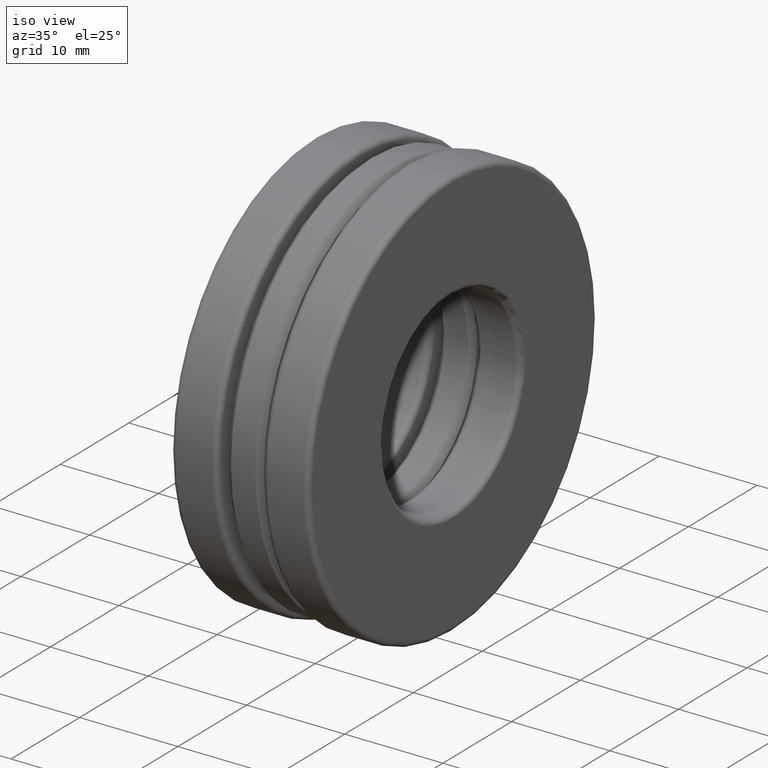
[diagram: clean part render]
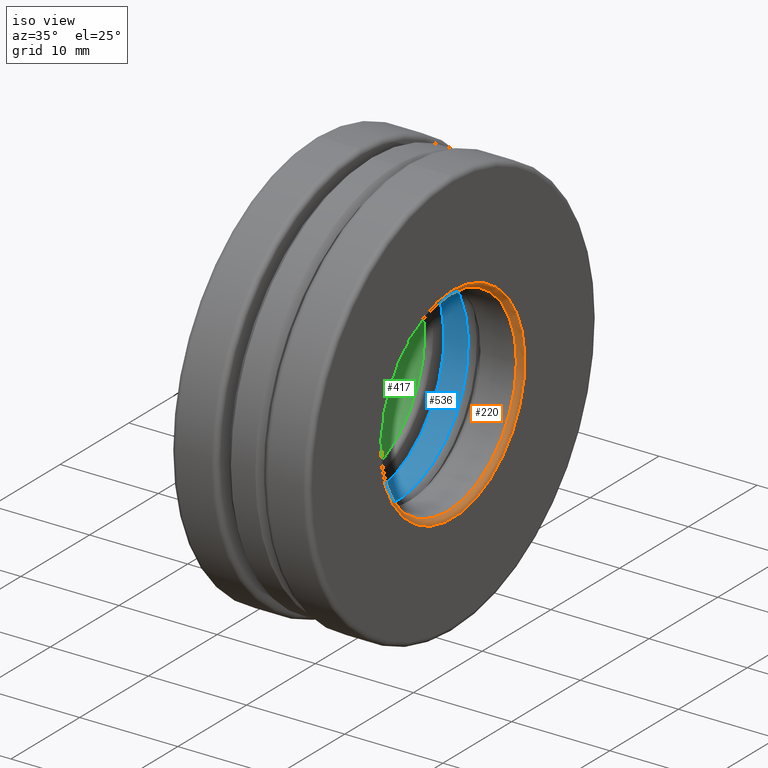
[diagram: same view with three faces highlighted in distinct colors, each labeled with its STEP entity id]
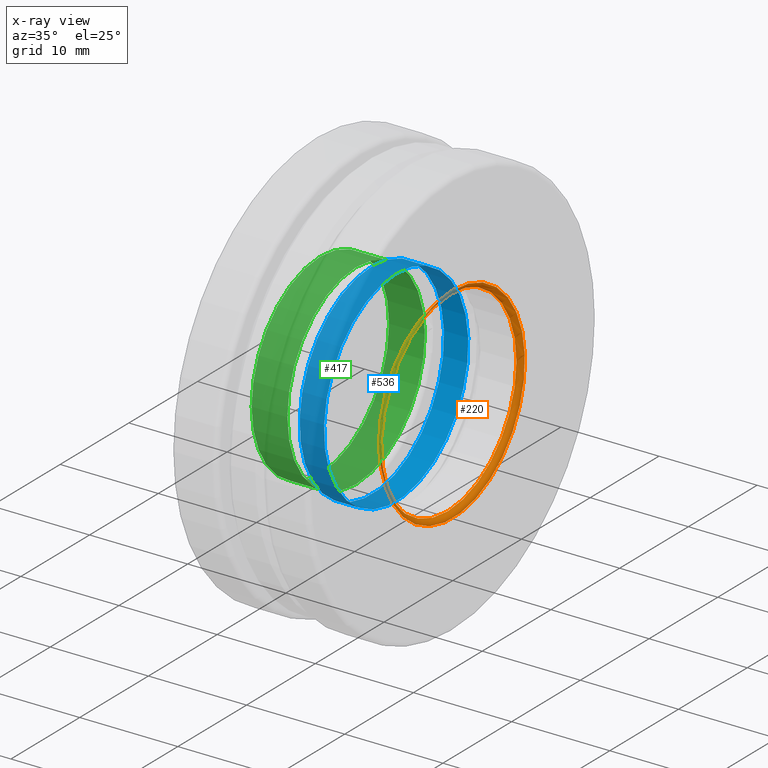
[diagram: x-ray of the same camera — body ghosted, the three highlighted faces saturated]
A machine part, iso view with three faces highlighted in distinct colors.
The next image is the same camera in x-ray (body ghosted, the three faces saturated) — at least one of them is partly hidden behind the body in this view.
Their STEP definitions:

[orange] entity #220 — the highlighted toroidal blend (fillet) surface has major radius 10.5029 mm and minor (blend) radius 0.508 mm.
#11 = CARTESIAN_POINT ( 'NONE',  ( 0.2755000000000001300, 0.0000000000000000000, 0.4135000000000000300 ) ) ;
#79 = DIRECTION ( 'NONE',  ( -1.000000000000000000, -0.0000000000000000000, -0.0000000000000000000 ) ) ;
#156 = DIRECTION ( 'NONE',  ( -1.000000000000000000, -0.0000000000000000000, -0.0000000000000000000 ) ) ;
#166 = CARTESIAN_POINT ( 'NONE',  ( 0.2555000000000006200, 0.0000000000000000000, 0.0000000000000000000 ) ) ;
#220 = ADVANCED_FACE ( 'NONE', ( #293, #793 ), #423, .T. ) ;
#234 = DIRECTION ( 'NONE',  ( 0.0000000000000000000, 0.0000000000000000000, 1.000000000000000000 ) ) ;
#293 = FACE_OUTER_BOUND ( 'NONE', #485, .T. ) ;
#312 = CARTESIAN_POINT ( 'NONE',  ( 0.2555000000000006200, 0.0000000000000000000, 0.0000000000000000000 ) ) ;
#415 = EDGE_CURVE ( 'NONE', #704, #704, #587, .T. ) ;
#423 = TOROIDAL_SURFACE ( 'NONE', #666, 0.4135000000000000300, 0.01999999999999978500 ) ;
#435 = AXIS2_PLACEMENT_3D ( 'NONE', #166, #494, #683 ) ;
#483 = AXIS2_PLACEMENT_3D ( 'NONE', #584, #79, #541 ) ;
#485 = EDGE_LOOP ( 'NONE', ( #548 ) ) ;
#494 = DIRECTION ( 'NONE',  ( -1.000000000000000000, -0.0000000000000000000, -0.0000000000000000000 ) ) ;
#538 = CARTESIAN_POINT ( 'NONE',  ( 0.2555000000000006200, 0.0000000000000000000, 0.3934999999999999600 ) ) ;
#541 = DIRECTION ( 'NONE',  ( 0.0000000000000000000, 0.0000000000000000000, 1.000000000000000000 ) ) ;
#548 = ORIENTED_EDGE ( 'NONE', *, *, #415, .F. ) ;
#584 = CARTESIAN_POINT ( 'NONE',  ( 0.2755000000000001300, 0.0000000000000000000, 0.0000000000000000000 ) ) ;
#587 = CIRCLE ( 'NONE', #483, 0.4135000000000000300 ) ;
#643 = EDGE_CURVE ( 'NONE', #658, #658, #693, .T. ) ;
#658 = VERTEX_POINT ( 'NONE', #538 ) ;
#666 = AXIS2_PLACEMENT_3D ( 'NONE', #312, #156, #234 ) ;
#678 = EDGE_LOOP ( 'NONE', ( #768 ) ) ;
#683 = DIRECTION ( 'NONE',  ( 0.0000000000000000000, 0.0000000000000000000, 1.000000000000000000 ) ) ;
#693 = CIRCLE ( 'NONE', #435, 0.3934999999999999600 ) ;
#704 = VERTEX_POINT ( 'NONE', #11 ) ;
#768 = ORIENTED_EDGE ( 'NONE', *, *, #643, .T. ) ;
#793 = FACE_OUTER_BOUND ( 'NONE', #678, .T. ) ;

[blue] entity #536 — the highlighted cylindrical surface (bore or boss wall) has radius 10.5029 mm, axis along (-1, -0, -0).
#36 = DIRECTION ( 'NONE',  ( -1.000000000000000000, -0.0000000000000000000, -0.0000000000000000000 ) ) ;
#66 = AXIS2_PLACEMENT_3D ( 'NONE', #766, #443, #756 ) ;
#74 = CIRCLE ( 'NONE', #514, 0.4134999999999999800 ) ;
#94 = ORIENTED_EDGE ( 'NONE', *, *, #697, .F. ) ;
#175 = VERTEX_POINT ( 'NONE', #593 ) ;
#182 = AXIS2_PLACEMENT_3D ( 'NONE', #740, #36, #616 ) ;
#218 = FACE_OUTER_BOUND ( 'NONE', #531, .T. ) ;
#299 = FACE_OUTER_BOUND ( 'NONE', #527, .T. ) ;
#443 = DIRECTION ( 'NONE',  ( -1.000000000000000000, -0.0000000000000000000, -0.0000000000000000000 ) ) ;
#464 = CARTESIAN_POINT ( 'NONE',  ( -0.04887499999999996700, 0.0000000000000000000, 0.4134999999999999800 ) ) ;
#475 = CIRCLE ( 'NONE', #66, 0.4134999999999999800 ) ;
#497 = CYLINDRICAL_SURFACE ( 'NONE', #182, 0.4134999999999999800 ) ;
#509 = VERTEX_POINT ( 'NONE', #464 ) ;
#514 = AXIS2_PLACEMENT_3D ( 'NONE', #627, #620, #630 ) ;
#527 = EDGE_LOOP ( 'NONE', ( #572 ) ) ;
#531 = EDGE_LOOP ( 'NONE', ( #94 ) ) ;
#536 = ADVANCED_FACE ( 'NONE', ( #218, #299 ), #497, .F. ) ;
#572 = ORIENTED_EDGE ( 'NONE', *, *, #714, .T. ) ;
#593 = CARTESIAN_POINT ( 'NONE',  ( 0.04887500000000004300, 0.0000000000000000000, 0.4134999999999999800 ) ) ;
#616 = DIRECTION ( 'NONE',  ( 0.0000000000000000000, 0.0000000000000000000, 1.000000000000000000 ) ) ;
#620 = DIRECTION ( 'NONE',  ( -1.000000000000000000, -0.0000000000000000000, -0.0000000000000000000 ) ) ;
#627 = CARTESIAN_POINT ( 'NONE',  ( -0.04887499999999996700, 0.0000000000000000000, 0.0000000000000000000 ) ) ;
#630 = DIRECTION ( 'NONE',  ( 0.0000000000000000000, 0.0000000000000000000, 1.000000000000000000 ) ) ;
#697 = EDGE_CURVE ( 'NONE', #175, #175, #475, .T. ) ;
#714 = EDGE_CURVE ( 'NONE', #509, #509, #74, .T. ) ;
#740 = CARTESIAN_POINT ( 'NONE',  ( 0.0000000000000000000, 0.0000000000000000000, 0.0000000000000000000 ) ) ;
#756 = DIRECTION ( 'NONE',  ( 0.0000000000000000000, 0.0000000000000000000, 1.000000000000000000 ) ) ;
#766 = CARTESIAN_POINT ( 'NONE',  ( 0.04887500000000004300, 0.0000000000000000000, 0.0000000000000000000 ) ) ;

[green] entity #417 — the highlighted cylindrical surface (bore or boss wall) has radius 9.9949 mm, axis along (-1, -0, -0).
#17 = CARTESIAN_POINT ( 'NONE',  ( -0.1118351699999999400, 0.0000000000000000000, 0.3934999999999999600 ) ) ;
#121 = CARTESIAN_POINT ( 'NONE',  ( -0.2555000000000000600, 0.0000000000000000000, 0.3934999999999999600 ) ) ;
#132 = CARTESIAN_POINT ( 'NONE',  ( 0.0000000000000000000, 0.0000000000000000000, 0.0000000000000000000 ) ) ;
#138 = AXIS2_PLACEMENT_3D ( 'NONE', #376, #256, #690 ) ;
#141 = DIRECTION ( 'NONE',  ( -1.000000000000000000, -0.0000000000000000000, -0.0000000000000000000 ) ) ;
#165 = EDGE_CURVE ( 'NONE', #240, #240, #281, .T. ) ;
#199 = AXIS2_PLACEMENT_3D ( 'NONE', #722, #470, #791 ) ;
#200 = FACE_OUTER_BOUND ( 'NONE', #781, .T. ) ;
#240 = VERTEX_POINT ( 'NONE', #121 ) ;
#256 = DIRECTION ( 'NONE',  ( -1.000000000000000000, -0.0000000000000000000, -0.0000000000000000000 ) ) ;
#266 = AXIS2_PLACEMENT_3D ( 'NONE', #132, #141, #786 ) ;
#281 = CIRCLE ( 'NONE', #199, 0.3934999999999999600 ) ;
#289 = EDGE_LOOP ( 'NONE', ( #695 ) ) ;
#376 = CARTESIAN_POINT ( 'NONE',  ( -0.1118351699999999400, 0.0000000000000000000, 0.0000000000000000000 ) ) ;
#377 = EDGE_CURVE ( 'NONE', #787, #787, #441, .T. ) ;
#417 = ADVANCED_FACE ( 'NONE', ( #552, #200 ), #528, .F. ) ;
#441 = CIRCLE ( 'NONE', #138, 0.3934999999999999600 ) ;
#470 = DIRECTION ( 'NONE',  ( -1.000000000000000000, -0.0000000000000000000, -0.0000000000000000000 ) ) ;
#528 = CYLINDRICAL_SURFACE ( 'NONE', #266, 0.3934999999999999600 ) ;
#552 = FACE_OUTER_BOUND ( 'NONE', #289, .T. ) ;
#654 = ORIENTED_EDGE ( 'NONE', *, *, #377, .F. ) ;
#690 = DIRECTION ( 'NONE',  ( 0.0000000000000000000, 0.0000000000000000000, 1.000000000000000000 ) ) ;
#695 = ORIENTED_EDGE ( 'NONE', *, *, #165, .T. ) ;
#722 = CARTESIAN_POINT ( 'NONE',  ( -0.2555000000000000600, 0.0000000000000000000, 0.0000000000000000000 ) ) ;
#781 = EDGE_LOOP ( 'NONE', ( #654 ) ) ;
#786 = DIRECTION ( 'NONE',  ( 0.0000000000000000000, 0.0000000000000000000, 1.000000000000000000 ) ) ;
#787 = VERTEX_POINT ( 'NONE', #17 ) ;
#791 = DIRECTION ( 'NONE',  ( 0.0000000000000000000, 0.0000000000000000000, 1.000000000000000000 ) ) ;